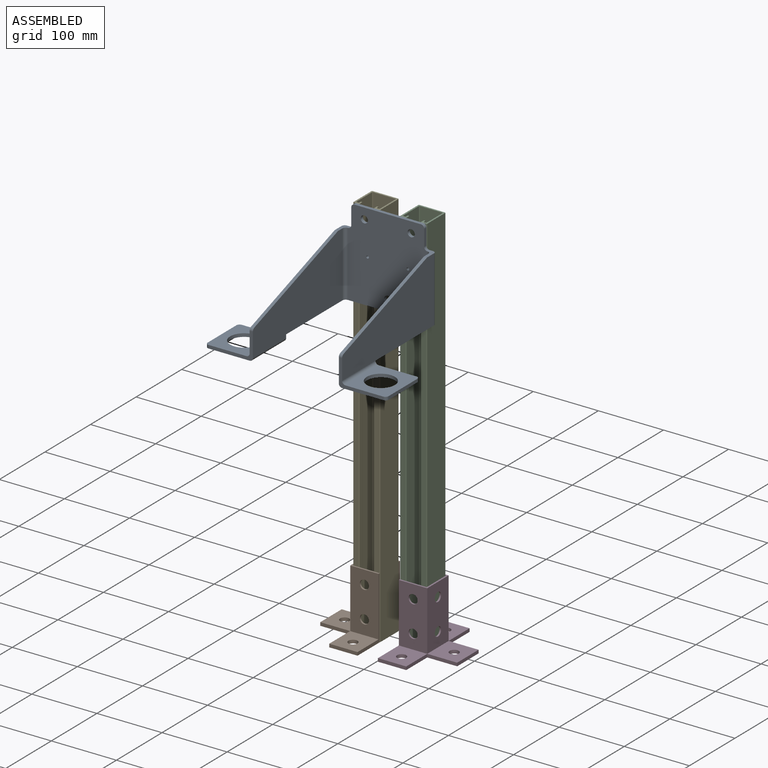
[diagram: assembled view]
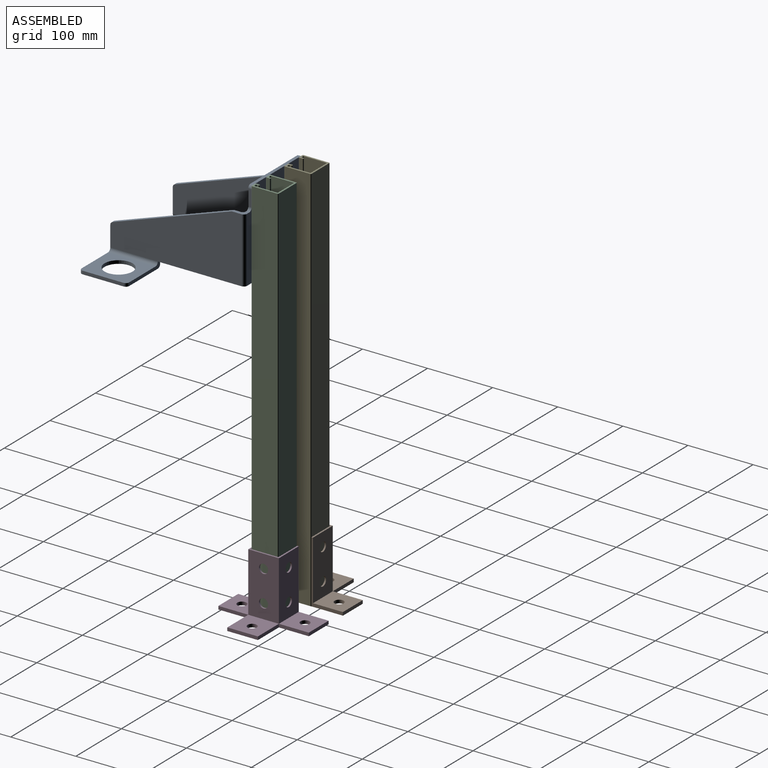
[diagram: assembled view, second angle]
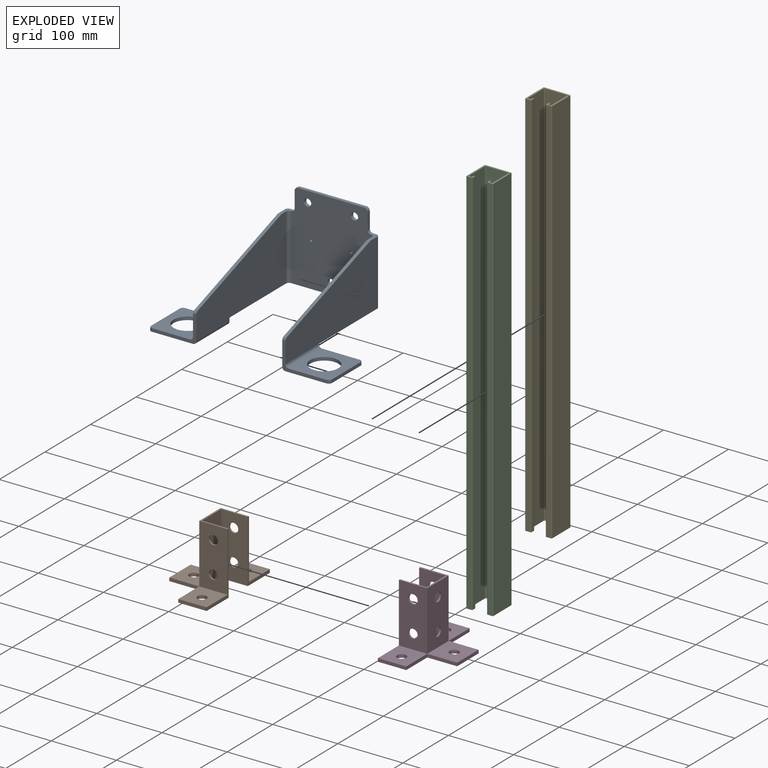
[diagram: exploded view]
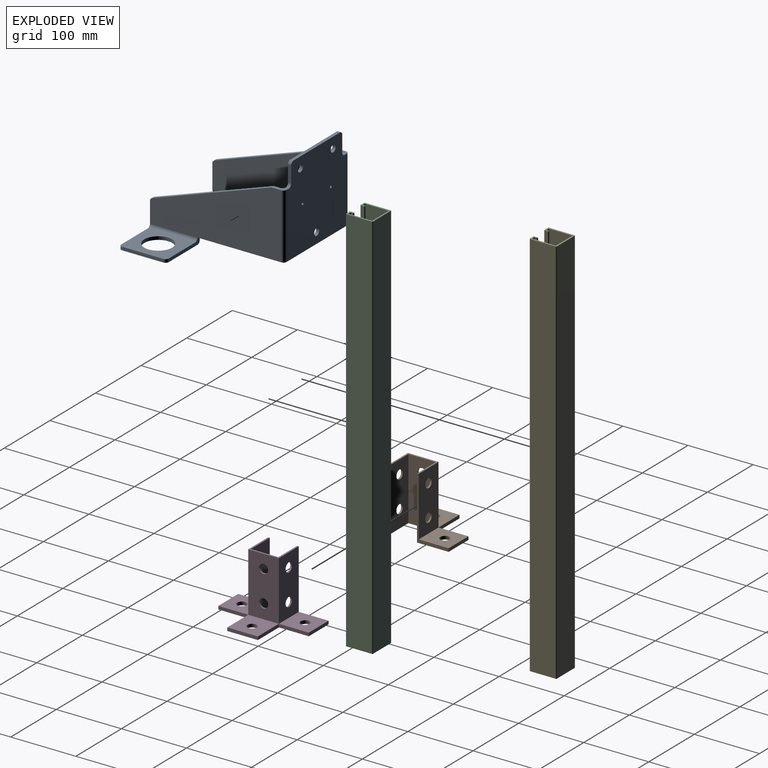
[diagram: exploded view, second angle]
ASSEMBLY  parts=5 mates=4
PART A: 49 faces, bbox 206.5x278x145 mm
  f0: plane 20x10mm, normal (0,0,1), area 125mm2, adj f3,f4,f8,f12,f31,f34,f43
  f1: plane 68x41.45mm, normal (1,0,0), area 522.2mm2, adj f3,f4,f13,f15,f25,f26,f27,f29
  f2: plane 68x41.45mm, normal (1,0,0), area 522.2mm2, adj f6,f7,f17,f19,f21,f22,f23,f30
  f3: plane 201.5x100mm, normal (0,-1,0), area 14086.4mm2, adj f0,f1,f10,f12,f25,f29,f34
  f4: plane 196.5x105mm, normal (0,1,0), area 13951.4mm2, adj f0,f1,f10,f12,f16,f26,f29,f31
  f5: plane 135x122mm, normal (1,0,0), area 15808.5mm2, adj f10,f31,f32,f37,f38,f39,f40,f41
  f6: plane 196.5x105mm, normal (0,-1,0), area 13951.4mm2, adj f2,f9,f10,f11,f20,f21,f30,f32
  f7: plane 201.5x100mm, normal (0,1,0), area 14086.4mm2, adj f2,f9,f10,f11,f22,f30,f33
  f8: plane 135x132mm, normal (-1,0,0), area 16808.5mm2, adj f0,f9,f10,f33,f34,f37,f38,f39
  f9: plane 20x10mm, normal (0,0,1), area 125mm2, adj f6,f7,f8,f11,f32,f33,f46
  f10: plane 142x133.5mm, normal (0,0,-1), area 1995mm2, adj f3,f4,f5,f6,f7,f8,f16,f20
  f11: plane 183.15x63.83mm, normal (0.33,0,0.94), area 969.8mm2, adj f6,f7,f9,f30
  f12: plane 183.15x63.83mm, normal (0.33,0,0.94), area 969.8mm2, adj f0,f3,f4,f29
  f13: plane 73x63mm, normal (0,0,1), area 3136.1mm2, adj f1,f14,f16,f25,f27,f28,f35
  f14: plane 63x5mm, normal (0,-1,0), area 315mm2, adj f13,f15,f27,f28
  f15: plane 73x68mm, normal (0,0,-1), area 3501.1mm2, adj f1,f14,f16,f26,f27,f28,f35
  f16: plane 68x10mm, normal (-1,0,0), area 365mm2, adj f4,f10,f13,f15,f25,f26,f28
  f17: plane 73x68mm, normal (0,0,-1), area 3501.1mm2, adj f2,f18,f20,f21,f23,f24,f36
  f18: plane 63x5mm, normal (0,1,0), area 315mm2, adj f17,f19,f23,f24
  f19: plane 73x63mm, normal (0,0,1), area 3136.1mm2, adj f2,f18,f20,f22,f23,f24,f36
  f20: plane 68x10mm, normal (-1,0,0), area 365mm2, adj f6,f10,f17,f19,f21,f22,f24
  f21: cylinder r=5mm len=73mm, axis (-1,0,0), area 573.3mm2, adj f2,f6,f17,f20
  f22: cylinder r=5mm len=73mm, axis (1,0,0), area 573.3mm2, adj f2,f7,f19,f20
  f23: cylinder r=5mm len=5mm, axis (0,0,1), area 39.3mm2, adj f2,f17,f18,f19
  f24: cylinder r=5mm len=5mm, axis (0,0,-1), area 39.3mm2, adj f17,f18,f19,f20
  f25: cylinder r=5mm len=73mm, axis (-1,0,0), area 573.3mm2, adj f1,f3,f13,f16
  f26: cylinder r=5mm len=73mm, axis (-1,0,0), area 573.3mm2, adj f1,f4,f15,f16
  f27: cylinder r=5mm len=5mm, axis (0,0,-1), area 39.3mm2, adj f1,f13,f14,f15
  f28: cylinder r=5mm len=5mm, axis (0,0,1), area 39.3mm2, adj f13,f14,f15,f16
  f29: cylinder r=5mm len=5mm, axis (0,1,0), area 30.9mm2, adj f1,f3,f4,f12
  f30: cylinder r=5mm len=5mm, axis (0,1,0), area 30.9mm2, adj f2,f6,f7,f11
  f31: cylinder r=5mm len=100mm, axis (0,0,1), area 785.4mm2, adj f0,f4,f5,f10
  f32: cylinder r=5mm len=100mm, axis (0,0,1), area 785.4mm2, adj f5,f6,f9,f10
  f33: cylinder r=5mm len=100mm, axis (0,0,-1), area 785.4mm2, adj f7,f8,f9,f10
  f34: cylinder r=5mm len=100mm, axis (0,0,-1), area 785.4mm2, adj f0,f3,f8,f10
  f35: cylinder r=21.5mm len=43mm, axis (0,0,1), area 675.4mm2, adj f13,f15
  f36: cylinder r=21.5mm len=43mm, axis (0,0,1), area 675.4mm2, adj f17,f19
  f37: cylinder r=5.5mm len=11mm, axis (-1,0,0), area 172.8mm2, adj f5,f8
  f38: cylinder r=2.05mm len=5mm, axis (-1,0,0), area 64.4mm2, adj f5,f8
  f39: cylinder r=2.05mm len=5mm, axis (-1,0,0), area 64.4mm2, adj f5,f8
  f40: plane 25x5mm, normal (0,-1,0), area 125mm2, adj f5,f8,f43,f44
  f41: plane 102x5mm, normal (0,0,1), area 510mm2, adj f5,f8,f44,f45
  f42: plane 25x5mm, normal (0,1,0), area 125mm2, adj f5,f8,f45,f46
  f43: cylinder r=5mm len=5mm, axis (-1,0,0), area 39.3mm2, adj f0,f5,f8,f40
  f44: cylinder r=5mm len=5mm, axis (-1,0,0), area 39.3mm2, adj f5,f8,f40,f41
  f45: cylinder r=5mm len=5mm, axis (-1,0,0), area 39.3mm2, adj f5,f8,f41,f42
  f46: cylinder r=5mm len=5mm, axis (-1,0,0), area 39.3mm2, adj f5,f8,f9,f42
  f47: cylinder r=5.5mm len=11mm, axis (-1,0,0), area 172.8mm2, adj f5,f8
  f48: cylinder r=5.5mm len=11mm, axis (-1,0,0), area 172.8mm2, adj f5,f8
PART B: 29 faces, bbox 139x89.5x96 mm
  f0: plane 46x5mm, normal (-1,0,0), area 230mm2, adj f11,f14,f16,f18
  f1: plane 91x47mm, normal (0,-1,0), area 3969.1mm2, adj f4,f6,f10,f14,f23,f24
  f2: plane 96x41mm, normal (1,0,0), area 3628.1mm2, adj f3,f9,f10,f11,f26,f28
  f3: plane 96x48.5mm, normal (0,1,0), area 470mm2, adj f2,f4,f10,f11,f17,f19
  f4: plane 91x43.5mm, normal (-1,0,0), area 3650.6mm2, adj f1,f3,f10,f17,f26,f28
  f5: plane 46x5mm, normal (0,-1,0), area 230mm2, adj f11,f12,f13,f15
  f6: plane 91x43.5mm, normal (1,0,0), area 3650.6mm2, adj f1,f7,f10,f12,f25,f27
  f7: plane 96x48.5mm, normal (0,1,0), area 470mm2, adj f6,f8,f10,f11,f12,f13
  f8: plane 96x41mm, normal (-1,0,0), area 3628.1mm2, adj f7,f9,f10,f11,f25,f27
  f9: plane 96x42mm, normal (0,1,0), area 3724.1mm2, adj f2,f8,f10,f11,f23,f24
  f10: plane 47x43.5mm, normal (0,0,1), area 322.5mm2, adj f1,f2,f3,f4,f6,f7,f8,f9
  f11: plane 139x89.5mm, normal (0,0,-1), area 6024.7mm2, adj f0,f2,f3,f5,f7,f8,f9,f13
  f12: plane 46x43.5mm, normal (0,0,1), area 1847.1mm2, adj f5,f6,f7,f13,f22
  f13: plane 43.5x5mm, normal (1,0,0), area 217.5mm2, adj f5,f7,f11,f12
  f14: plane 47x46mm, normal (0,0,1), area 2008.1mm2, adj f0,f1,f15,f16,f21
  f15: plane 46x5mm, normal (1,0,0), area 230mm2, adj f5,f11,f14,f16
  f16: plane 47x5mm, normal (0,-1,0), area 235mm2, adj f0,f11,f14,f15
  f17: plane 46x43.5mm, normal (0,0,1), area 1847.1mm2, adj f3,f4,f18,f19,f20
  f18: plane 46x5mm, normal (0,-1,0), area 230mm2, adj f0,f11,f17,f19
  f19: plane 43.5x5mm, normal (-1,0,0), area 217.5mm2, adj f3,f11,f17,f18
  f20: cylinder r=7mm len=14mm, axis (0,0,1), area 219.9mm2, adj f11,f17
  f21: cylinder r=7mm len=14mm, axis (0,0,1), area 219.9mm2, adj f11,f14
  f22: cylinder r=7mm len=14mm, axis (0,0,1), area 219.9mm2, adj f11,f12
  f23: cylinder r=7mm len=14mm, axis (0,-1,0), area 110mm2, adj f1,f9
  f24: cylinder r=7mm len=14mm, axis (0,-1,0), area 110mm2, adj f1,f9
  f25: cylinder r=7mm len=14mm, axis (1,0,0), area 110mm2, adj f6,f8
  f26: cylinder r=7mm len=14mm, axis (1,0,0), area 110mm2, adj f2,f4
  f27: cylinder r=7mm len=14mm, axis (1,0,0), area 110mm2, adj f6,f8
  f28: cylinder r=7mm len=14mm, axis (1,0,0), area 110mm2, adj f2,f4
PART C: 34 faces, bbox 41.3x41.3x600 mm
  f0: plane 600x0.5mm, normal (0,-1,0), area 300mm2, adj f16,f17,f18,f33
  f1: plane 600x5.1mm, normal (1,0,0), area 3060mm2, adj f16,f17,f18,f19
  f2: plane 600x7.55mm, normal (0,1,0), area 4530mm2, adj f16,f17,f19,f20
  f3: plane 600x39.3mm, normal (-1,0,0), area 23580mm2, adj f16,f17,f20,f21
  f4: plane 600x39.3mm, normal (0,-1,0), area 23580mm2, adj f16,f17,f21,f22
  f5: plane 600x39.3mm, normal (1,0,0), area 23580mm2, adj f16,f17,f22,f23
  f6: plane 600x7.55mm, normal (0,1,0), area 4530mm2, adj f16,f17,f23,f24
  f7: plane 600x5.1mm, normal (-1,0,0), area 3060mm2, adj f16,f17,f24,f25
  f8: plane 600x0.5mm, normal (0,-1,0), area 300mm2, adj f16,f17,f25,f26
  f9: plane 600x2.6mm, normal (1,0,0), area 1560mm2, adj f16,f17,f26,f27
  f10: plane 600x2.55mm, normal (0,-1,0), area 1530mm2, adj f16,f17,f27,f28
  f11: plane 600x34.3mm, normal (-1,0,0), area 20580mm2, adj f16,f17,f28,f29
  f12: plane 600x34.3mm, normal (0,1,0), area 20580mm2, adj f16,f17,f29,f30
  f13: plane 600x34.3mm, normal (1,0,0), area 20580mm2, adj f16,f17,f30,f31
  f14: plane 600x2.55mm, normal (0,-1,0), area 1530mm2, adj f16,f17,f31,f32
  f15: plane 600x2.6mm, normal (-1,0,0), area 1560mm2, adj f16,f17,f32,f33
  f16: plane 41.3x41.3mm, normal (0,0,1), area 354.6mm2, adj f0,f1,f2,f3,f4,f5,f6,f7
  f17: plane 41.3x41.3mm, normal (0,0,-1), area 354.6mm2, adj f0,f1,f2,f3,f4,f5,f6,f7
  f18: cylinder r=1mm len=600mm, axis (0,0,1), area 942.5mm2, adj f0,f1,f16,f17
  f19: cylinder r=1mm len=600mm, axis (0,0,-1), area 942.5mm2, adj f1,f2,f16,f17
  f20: cylinder r=1mm len=600mm, axis (0,0,-1), area 942.5mm2, adj f2,f3,f16,f17
  f21: cylinder r=1mm len=600mm, axis (0,0,-1), area 942.5mm2, adj f3,f4,f16,f17
  f22: cylinder r=1mm len=600mm, axis (0,0,-1), area 942.5mm2, adj f4,f5,f16,f17
  f23: cylinder r=1mm len=600mm, axis (0,0,-1), area 942.5mm2, adj f5,f6,f16,f17
  f24: cylinder r=1mm len=600mm, axis (0,0,-1), area 942.5mm2, adj f6,f7,f16,f17
  f25: cylinder r=1mm len=600mm, axis (0,0,1), area 942.5mm2, adj f7,f8,f16,f17
  f26: cylinder r=1mm len=600mm, axis (0,0,-1), area 942.5mm2, adj f8,f9,f16,f17
  f27: cylinder r=1mm len=600mm, axis (0,0,1), area 942.5mm2, adj f9,f10,f16,f17
  f28: cylinder r=1mm len=600mm, axis (0,0,1), area 942.5mm2, adj f10,f11,f16,f17
  f29: cylinder r=1mm len=600mm, axis (0,0,1), area 942.5mm2, adj f11,f12,f16,f17
  f30: cylinder r=1mm len=600mm, axis (0,0,1), area 942.5mm2, adj f12,f13,f16,f17
  f31: cylinder r=1mm len=600mm, axis (0,0,1), area 942.5mm2, adj f13,f14,f16,f17
  f32: cylinder r=1mm len=600mm, axis (0,0,1), area 942.5mm2, adj f14,f15,f16,f17
  f33: cylinder r=1mm len=600mm, axis (0,0,-1), area 942.5mm2, adj f0,f15,f16,f17
PART D: same geometry as B
PART E: same geometry as C
PLACE A rot(axis=(0,0,-1),90deg) t=(572.98,418.69,-52.43)mm
PLACE B rot(axis=(0,0,-1),90deg) t=(564.05,479.19,-517.43)mm
PLACE C rot(axis=(0,0,1),180deg) t=(635.2,477.34,-517.43)mm
PLACE D rot(axis=(0,0,1),90deg) t=(634.34,479.19,-517.43)mm
PLACE E rot(axis=(0,0,1),180deg) t=(563.2,477.34,-517.43)mm
MATE fastened C.f2 <-> A.f8  axis (0,-1,0) through (635.2,458.54,82.57)mm
MATE fastened B.f9 <-> E.f5  axis (1,0,0) through (542.55,479.19,-517.43)mm
MATE fastened E.f2 <-> A.f8  axis (0,-1,0) through (563.2,458.54,82.57)mm
MATE fastened C.f3 <-> D.f9  axis (1,0,0) through (655.85,479.19,-517.43)mm
